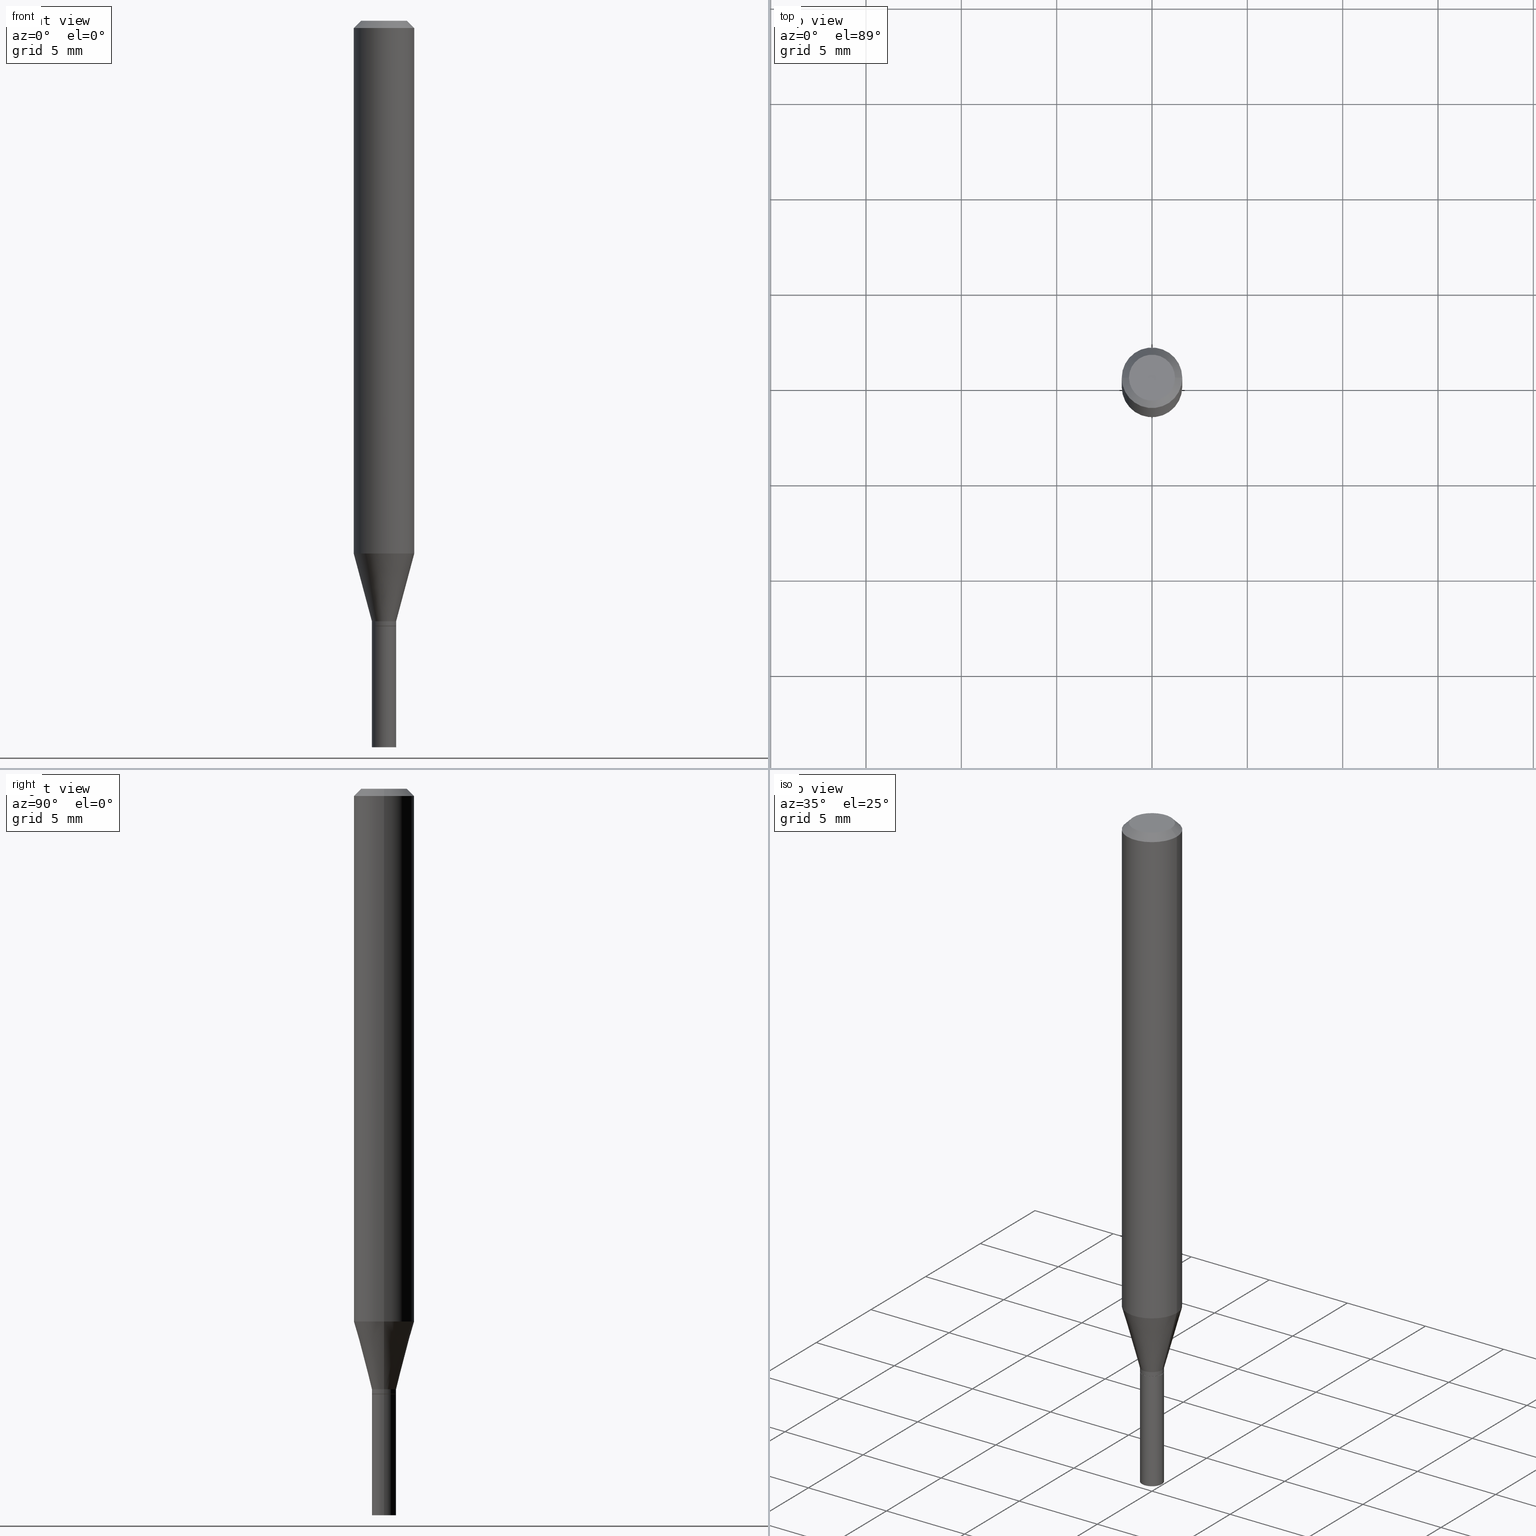
[diagram: canonical four-view strip — front | top / right | iso, engineering-drawing reading convention]
A machine part, canonical four-view strip (front | top / right | iso — engineering-drawing reading convention). The complete STEP part file that produces these views, byte-faithful:
ISO-10303-21;
HEADER;
FILE_DESCRIPTION (( 'STEP AP203' ),
    '1' );
FILE_NAME ('02650.STEP',
    '2024-03-18T21:05:29',
    ( '' ),
    ( '' ),
    'SwSTEP 2.0',
    'SolidWorks 2023',
    '' );
FILE_SCHEMA (( 'CONFIG_CONTROL_DESIGN' ));
ENDSEC;

DATA;
#1 = AXIS2_PLACEMENT_3D ( 'NONE', #346, #416, #126 ) ;
#2 = ORIENTED_EDGE ( 'NONE', *, *, #249, .T. ) ;
#3 = PLANE ( 'NONE',  #339 ) ;
#4 = VERTEX_POINT ( 'NONE', #454 ) ;
#5 = CARTESIAN_POINT ( 'NONE',  ( 3.316907271900976096E-16, 0.04749999999999999362, -4.396022119312972362E-16 ) ) ;
#6 = EDGE_LOOP ( 'NONE', ( #440, #338, #264, #212 ) ) ;
#7 = ADVANCED_FACE ( 'NONE', ( #344 ), #154, .T. ) ;
#8 = AXIS2_PLACEMENT_3D ( 'NONE', #322, #184, #147 ) ;
#9 = ORIENTED_EDGE ( 'NONE', *, *, #366, .T. ) ;
#10 = ADVANCED_FACE ( 'NONE', ( #161 ), #303, .T. ) ;
#11 = AXIS2_PLACEMENT_3D ( 'NONE', #237, #203, #453 ) ;
#12 = ORIENTED_EDGE ( 'NONE', *, *, #352, .F. ) ;
#13 = PLANE ( 'NONE',  #1 ) ;
#14 = ORIENTED_EDGE ( 'NONE', *, *, #146, .T. ) ;
#15 = DIRECTION ( 'NONE',  ( 1.000000000000000000, -6.982962677686266711E-15, 0.000000000000000000 ) ) ;
#16 = DIRECTION ( 'NONE',  ( -2.445468806185136597E-29, 3.491481338843145583E-15, 1.000000000000000000 ) ) ;
#17 = DIRECTION ( 'NONE',  ( 1.000000000000000000, -6.982962677686257244E-15, 0.000000000000000000 ) ) ;
#18 = ORIENTED_EDGE ( 'NONE', *, *, #309, .T. ) ;
#19 = LINE ( 'NONE', #393, #91 ) ;
#20 = ORIENTED_EDGE ( 'NONE', *, *, #231, .F. ) ;
#21 = FACE_OUTER_BOUND ( 'NONE', #187, .T. ) ;
#22 = VERTEX_POINT ( 'NONE', #450 ) ;
#23 = CC_DESIGN_DATE_AND_TIME_ASSIGNMENT ( #317, #395, ( #380 ) ) ;
#24 = CARTESIAN_POINT ( 'NONE',  ( 3.668203209277705088E-31, -5.237222008264718399E-17, -0.01499999999999999944 ) ) ;
#25 = DIRECTION ( 'NONE',  ( 1.000000000000000000, -6.982962677686274599E-15, 0.000000000000000000 ) ) ;
#26 = VECTOR ( 'NONE', #59, 39.37007874015748143 ) ;
#27 = EDGE_CURVE ( 'NONE', #340, #92, #191, .T. ) ;
#28 = AXIS2_PLACEMENT_3D ( 'NONE', #251, #466, #72 ) ;
#29 = PERSON_AND_ORGANIZATION ( #455, #456 ) ;
#30 = CARTESIAN_POINT ( 'NONE',  ( 3.056836007731421306E-29, -4.364351673553932471E-15, -1.250000000000000000 ) ) ;
#31 = CARTESIAN_POINT ( 'NONE',  ( 3.056836007731421306E-29, -4.364351673553932471E-15, -1.250000000000000000 ) ) ;
#32 = DIRECTION ( 'NONE',  ( -2.445468806185136597E-29, 3.491481338843145583E-15, 1.000000000000000000 ) ) ;
#33 = ORIENTED_EDGE ( 'NONE', *, *, #70, .F. ) ;
#34 = CALENDAR_DATE ( 2024, 18, 3 ) ;
#35 = AXIS2_PLACEMENT_3D ( 'NONE', #199, #376, #248 ) ;
#36 = CONICAL_SURFACE ( 'NONE', #73, 0.06250000000000000000, 0.7853981633974667087 ) ;
#37 = AXIS2_PLACEMENT_3D ( 'NONE', #85, #245, #236 ) ;
#38 = DIRECTION ( 'NONE',  ( 1.000000000000000000, -6.982962677686270655E-15, 0.000000000000000000 ) ) ;
#39 =( CONVERSION_BASED_UNIT ( 'INCH', #365 ) LENGTH_UNIT ( ) NAMED_UNIT ( #45 ) );
#40 = DIRECTION ( 'NONE',  ( -1.000000000000000000, 6.982962677686265922E-15, -4.876176775795935793E-29 ) ) ;
#41 = DIRECTION ( 'NONE',  ( -2.445468806185136877E-29, 3.491481338843145188E-15, 1.000000000000000000 ) ) ;
#42 = CONICAL_SURFACE ( 'NONE', #170, 0.02450000000000000094, 0.7853981633974739252 ) ;
#43 = PRODUCT ( '02650', '02650', '', ( #224 ) ) ;
#44 = ADVANCED_FACE ( 'NONE', ( #446 ), #425, .F. ) ;
#45 = DIMENSIONAL_EXPONENTS ( 1.000000000000000000, 0.000000000000000000, 0.000000000000000000, 0.000000000000000000, 0.000000000000000000, 0.000000000000000000, 0.000000000000000000 ) ;
#46 = CARTESIAN_POINT ( 'NONE',  ( 0.02499999999999992506, -4.504010927107657490E-15, -1.240000000000000213 ) ) ;
#47 = ADVANCED_FACE ( 'NONE', ( #198 ), #267, .T. ) ;
#48 = CIRCLE ( 'NONE', #315, 0.02499999999999992506 ) ;
#49 = ORIENTED_EDGE ( 'NONE', *, *, #415, .F. ) ;
#50 = APPROVAL ( #288, 'UNSPECIFIED' ) ;
#51 = EDGE_LOOP ( 'NONE', ( #314, #164, #20, #99 ) ) ;
#52 = DIRECTION ( 'NONE',  ( -2.445468806185136597E-29, 3.491481338843145583E-15, 1.000000000000000000 ) ) ;
#53 = FACE_OUTER_BOUND ( 'NONE', #51, .T. ) ;
#54 = PLANE ( 'NONE',  #279 ) ;
#55 = CARTESIAN_POINT ( 'NONE',  ( 3.055613273328328505E-29, -4.362605932884510968E-15, -1.249500000000000055 ) ) ;
#56 = AXIS2_PLACEMENT_3D ( 'NONE', #356, #278, #308 ) ;
#57 = EDGE_LOOP ( 'NONE', ( #420, #152, #335, #272 ) ) ;
#58 = AXIS2_PLACEMENT_3D ( 'NONE', #24, #122, #15 ) ;
#59 = DIRECTION ( 'NONE',  ( 0.7071067811865656694, -2.468850131082446387E-15, 0.7071067811865294761 ) ) ;
#60 = VERTEX_POINT ( 'NONE', #87 ) ;
#61 = CARTESIAN_POINT ( 'NONE',  ( -0.02499999999999992506, 1.776356839400245140E-16, -1.229733772563722802E-30 ) ) ;
#62 = DIRECTION ( 'NONE',  ( 1.000000000000000000, -6.982962677686265922E-15, 4.876176775795935793E-29 ) ) ;
#63 = CARTESIAN_POINT ( 'NONE',  ( 0.06250000000000000000, -4.364351673553916694E-16, 3.047610484872459871E-30 ) ) ;
#64 = LINE ( 'NONE', #449, #136 ) ;
#65 = ADVANCED_FACE ( 'NONE', ( #375 ), #54, .F. ) ;
#66 = CARTESIAN_POINT ( 'NONE',  ( 0.02499999999999992506, -4.537179999826666847E-15, -1.249500000000000055 ) ) ;
#67 = PERSON_AND_ORGANIZATION ( #455, #456 ) ;
#68 = CIRCLE ( 'NONE', #58, 0.06250000000000000000 ) ;
#69 = LOCAL_TIME ( 17, 5, 29.00000000000000000, #431 ) ;
#70 = EDGE_CURVE ( 'NONE', #177, #193, #115, .T. ) ;
#71 = CALENDAR_DATE ( 2024, 18, 3 ) ;
#72 = DIRECTION ( 'NONE',  ( 1.000000000000000000, -6.982962677686267499E-15, 4.852736867747366768E-29 ) ) ;
#73 = AXIS2_PLACEMENT_3D ( 'NONE', #336, #258, #189 ) ;
#74 = DESIGN_CONTEXT ( 'detailed design', #171, 'design' ) ;
#75 = EDGE_CURVE ( 'NONE', #193, #342, #155, .T. ) ;
#76 = ORIENTED_EDGE ( 'NONE', *, *, #82, .F. ) ;
#77 = DIRECTION ( 'NONE',  ( 1.000000000000000000, -6.982962677686254878E-15, 0.000000000000000000 ) ) ;
#78 = CARTESIAN_POINT ( 'NONE',  ( -0.02450000000000000094, -4.187619476118597753E-15, -1.250000000000000000 ) ) ;
#79 = APPLICATION_CONTEXT ( 'configuration controlled 3d designs of mechanical parts and assemblies' ) ;
#80 = CARTESIAN_POINT ( 'NONE',  ( -0.02499999999999992506, -4.184970248944486552E-15, -1.249500000000000055 ) ) ;
#81 = ORIENTED_EDGE ( 'NONE', *, *, #281, .F. ) ;
#82 = EDGE_CURVE ( 'NONE', #22, #342, #403, .T. ) ;
#83 = DIRECTION ( 'NONE',  ( -2.445468806185136597E-29, 3.491481338843145583E-15, 1.000000000000000000 ) ) ;
#84 = EDGE_LOOP ( 'NONE', ( #269, #363, #190, #294 ) ) ;
#85 = CARTESIAN_POINT ( 'NONE',  ( 3.056836007731421306E-29, -4.364351673553932471E-15, -1.250000000000000000 ) ) ;
#86 = DIRECTION ( 'NONE',  ( -2.445468806185136597E-29, 3.491481338843145583E-15, 1.000000000000000000 ) ) ;
#87 = CARTESIAN_POINT ( 'NONE',  ( -0.06250000000000000000, -1.502495597456988408E-15, -0.01499999999999999944 ) ) ;
#88 = DIRECTION ( 'NONE',  ( 1.000000000000000000, -6.982962677686254878E-15, 0.000000000000000000 ) ) ;
#89 = ORIENTED_EDGE ( 'NONE', *, *, #185, .F. ) ;
#90 = CYLINDRICAL_SURFACE ( 'NONE', #109, 0.02499999999999992506 ) ;
#91 = VECTOR ( 'NONE', #98, 39.37007874015748143 ) ;
#92 = VERTEX_POINT ( 'NONE', #80 ) ;
#93 = CLOSED_SHELL ( 'NONE', ( #157, #44, #194, #220 ) ) ;
#94 = FACE_OUTER_BOUND ( 'NONE', #265, .T. ) ;
#95 = DIRECTION ( 'NONE',  ( 2.445468806185136597E-29, -3.491481338843145583E-15, -1.000000000000000000 ) ) ;
#96 = EDGE_CURVE ( 'NONE', #206, #394, #230, .T. ) ;
#97 = ORIENTED_EDGE ( 'NONE', *, *, #70, .T. ) ;
#98 = DIRECTION ( 'NONE',  ( -2.445468806185136877E-29, 3.491481338843145188E-15, 1.000000000000000000 ) ) ;
#99 = ORIENTED_EDGE ( 'NONE', *, *, #249, .F. ) ;
#100 = CC_DESIGN_PERSON_AND_ORGANIZATION_ASSIGNMENT ( #104, #140, ( #380 ) ) ;
#101 = EDGE_LOOP ( 'NONE', ( #49, #97, #337, #76 ) ) ;
#102 = CONICAL_SURFACE ( 'NONE', #8, 0.02499999999999992506, 0.2617993877991497964 ) ;
#103 = CARTESIAN_POINT ( 'NONE',  ( 2.690133300931779832E-29, -3.840797394531454574E-15, -1.100048094716167268 ) ) ;
#104 = PERSON_AND_ORGANIZATION ( #455, #456 ) ;
#105 = CARTESIAN_POINT ( 'NONE',  ( 0.04749999999999999362, -4.035134999187587991E-16, -5.475136966724932144E-16 ) ) ;
#106 = CC_DESIGN_PERSON_AND_ORGANIZATION_ASSIGNMENT ( #367, #186, ( #43 ) ) ;
#107 = DIRECTION ( 'NONE',  ( 1.000000000000000000, -6.982962677686276177E-15, 0.000000000000000000 ) ) ;
#108 = FACE_OUTER_BOUND ( 'NONE', #407, .T. ) ;
#109 = AXIS2_PLACEMENT_3D ( 'NONE', #241, #384, #172 ) ;
#110 = EDGE_CURVE ( 'NONE', #193, #177, #293, .T. ) ;
#111 = APPLICATION_PROTOCOL_DEFINITION ( 'international standard', 'config_control_design', 1994, #79 ) ;
#112 = DIRECTION ( 'NONE',  ( 0.000000000000000000, 0.000000000000000000, 1.000000000000000000 ) ) ;
#113 = VERTEX_POINT ( 'NONE', #78 ) ;
#114 = ORIENTED_EDGE ( 'NONE', *, *, #182, .T. ) ;
#115 = CIRCLE ( 'NONE', #137, 0.02499999999999992506 ) ;
#116 = APPROVAL_PERSON_ORGANIZATION ( #282, #349, #253 ) ;
#117 = VECTOR ( 'NONE', #343, 39.37007874015748854 ) ;
#118 = ORIENTED_EDGE ( 'NONE', *, *, #404, .T. ) ;
#119 = CARTESIAN_POINT ( 'NONE',  ( 3.032381319669569761E-29, -4.329436860165500822E-15, -1.240000000000000213 ) ) ;
#120 = EDGE_CURVE ( 'NONE', #113, #92, #227, .T. ) ;
#121 = EDGE_LOOP ( 'NONE', ( #225, #262, #9, #377 ) ) ;
#122 = DIRECTION ( 'NONE',  ( -2.445468806185136597E-29, 3.491481338843145583E-15, 1.000000000000000000 ) ) ;
#123 = CC_DESIGN_APPROVAL ( #370, ( #215 ) ) ;
#124 = AXIS2_PLACEMENT_3D ( 'NONE', #239, #355, #25 ) ;
#125 = DIRECTION ( 'NONE',  ( 1.000000000000000000, -6.982962677686253300E-15, 0.000000000000000000 ) ) ;
#126 = DIRECTION ( 'NONE',  ( -1.000000000000000000, 6.982962677686265922E-15, -4.876176775795935793E-29 ) ) ;
#127 = DIRECTION ( 'NONE',  ( -0.7071067811865604513, 2.468850131082393139E-15, -0.7071067811865343611 ) ) ;
#128 = ORIENTED_EDGE ( 'NONE', *, *, #330, .F. ) ;
#129 = LINE ( 'NONE', #63, #326 ) ;
#130 = DIRECTION ( 'NONE',  ( -1.000000000000000000, 6.982962677686266711E-15, 0.000000000000000000 ) ) ;
#131 = VERTEX_POINT ( 'NONE', #133 ) ;
#132 = EDGE_CURVE ( 'NONE', #394, #410, #169, .T. ) ;
#133 = CARTESIAN_POINT ( 'NONE',  ( 0.02450000000000000094, -4.535434259157245343E-15, -1.250000000000000000 ) ) ;
#134 = CARTESIAN_POINT ( 'NONE',  ( 1.338927666171699122E-44, -1.911633854693045593E-30, -5.475136966724957782E-16 ) ) ;
#135 = ORIENTED_EDGE ( 'NONE', *, *, #182, .F. ) ;
#136 = VECTOR ( 'NONE', #271, 39.37007874015748143 ) ;
#137 = AXIS2_PLACEMENT_3D ( 'NONE', #175, #289, #107 ) ;
#138 = DIRECTION ( 'NONE',  ( 1.000000000000000000, -6.982962677686253300E-15, 0.000000000000000000 ) ) ;
#139 = CC_DESIGN_DATE_AND_TIME_ASSIGNMENT ( #284, #174, ( #396 ) ) ;
#140 = PERSON_AND_ORGANIZATION_ROLE ( 'creator' ) ;
#141 = APPROVAL_ROLE ( '' ) ;
#142 = DATE_AND_TIME ( #34, #69 ) ;
#143 = CC_DESIGN_SECURITY_CLASSIFICATION ( #396, ( #215 ) ) ;
#144 = APPROVAL_STATUS ( 'not_yet_approved' ) ;
#145 = CARTESIAN_POINT ( 'NONE',  ( 0.000000000000000000, 0.000000000000000000, 0.000000000000000000 ) ) ;
#146 = EDGE_CURVE ( 'NONE', #340, #193, #19, .T. ) ;
#147 = DIRECTION ( 'NONE',  ( 1.000000000000000000, -6.982962677686276177E-15, 0.000000000000000000 ) ) ;
#148 = AXIS2_PLACEMENT_3D ( 'NONE', #341, #52, #197 ) ;
#149 = LOCAL_TIME ( 17, 5, 29.00000000000000000, #433 ) ;
#150 = CARTESIAN_POINT ( 'NONE',  ( -0.02499999999999992506, -4.151801176225476407E-15, -1.240000000000000213 ) ) ;
#151 = ORIENTED_EDGE ( 'NONE', *, *, #256, .F. ) ;
#152 = ORIENTED_EDGE ( 'NONE', *, *, #459, .T. ) ;
#153 = CIRCLE ( 'NONE', #124, 0.02500000000000000139 ) ;
#154 = CONICAL_SURFACE ( 'NONE', #56, 0.02499999999999992506, 0.2617993877991497964 ) ;
#155 = LINE ( 'NONE', #46, #221 ) ;
#156 = CARTESIAN_POINT ( 'NONE',  ( 3.056836007731421306E-29, -4.364351673553932471E-15, -1.250000000000000000 ) ) ;
#157 = ADVANCED_FACE ( 'NONE', ( #414 ), #305, .T. ) ;
#158 = DIRECTION ( 'NONE',  ( -2.445468806185136597E-29, 3.491481338843145583E-15, 1.000000000000000000 ) ) ;
#159 = CARTESIAN_POINT ( 'NONE',  ( 0.06250000000000000000, -4.888073874380388472E-16, -0.01499999999999999944 ) ) ;
#160 = VECTOR ( 'NONE', #260, 39.37007874015748143 ) ;
#161 = FACE_OUTER_BOUND ( 'NONE', #436, .T. ) ;
#162 = CARTESIAN_POINT ( 'NONE',  ( 3.668203209277705088E-31, -5.237222008264718399E-17, -0.01499999999999999944 ) ) ;
#163 = FACE_OUTER_BOUND ( 'NONE', #166, .T. ) ;
#164 = ORIENTED_EDGE ( 'NONE', *, *, #214, .T. ) ;
#165 = FACE_OUTER_BOUND ( 'NONE', #57, .T. ) ;
#166 = EDGE_LOOP ( 'NONE', ( #319, #240, #368, #381 ) ) ;
#167 = EDGE_LOOP ( 'NONE', ( #458, #443, #210, #232 ) ) ;
#168 = CARTESIAN_POINT ( 'NONE',  ( 3.056836007731421306E-29, -4.364351673553932471E-15, -1.250000000000000000 ) ) ;
#169 = CIRCLE ( 'NONE', #35, 0.02500000000000000139 ) ;
#170 = AXIS2_PLACEMENT_3D ( 'NONE', #30, #318, #285 ) ;
#171 = APPLICATION_CONTEXT ( 'configuration controlled 3d designs of mechanical parts and assemblies' ) ;
#172 = DIRECTION ( 'NONE',  ( 1.000000000000000000, -6.982962677686265922E-15, 4.876176775795935793E-29 ) ) ;
#173 = ORIENTED_EDGE ( 'NONE', *, *, #132, .T. ) ;
#174 = DATE_TIME_ROLE ( 'classification_date' ) ;
#175 = CARTESIAN_POINT ( 'NONE',  ( 3.032381319669569761E-29, -4.329436860165500822E-15, -1.240000000000000213 ) ) ;
#176 = COORDINATED_UNIVERSAL_TIME_OFFSET ( 5, 0, .BEHIND. ) ;
#177 = VERTEX_POINT ( 'NONE', #268 ) ;
#178 = CIRCLE ( 'NONE', #234, 0.06250000000000000000 ) ;
#179 = CC_DESIGN_PERSON_AND_ORGANIZATION_ASSIGNMENT ( #29, #255, ( #396 ) ) ;
#180 = AXIS2_PLACEMENT_3D ( 'NONE', #270, #238, #88 ) ;
#181 = LINE ( 'NONE', #150, #160 ) ;
#182 = EDGE_CURVE ( 'NONE', #131, #113, #435, .T. ) ;
#183 = SHAPE_DEFINITION_REPRESENTATION ( #228, #329 ) ;
#184 = DIRECTION ( 'NONE',  ( -2.445468806185136597E-29, 3.491481338843145583E-15, 1.000000000000000000 ) ) ;
#185 = EDGE_CURVE ( 'NONE', #131, #340, #302, .T. ) ;
#186 = PERSON_AND_ORGANIZATION_ROLE ( 'design_owner' ) ;
#187 = EDGE_LOOP ( 'NONE', ( #463, #208, #2, #418 ) ) ;
#188 = APPROVAL_PERSON_ORGANIZATION ( #364, #50, #141 ) ;
#189 = DIRECTION ( 'NONE',  ( -1.000000000000000000, 6.982962677686266711E-15, 0.000000000000000000 ) ) ;
#190 = ORIENTED_EDGE ( 'NONE', *, *, #110, .F. ) ;
#191 = CIRCLE ( 'NONE', #243, 0.02499999999999992506 ) ;
#192 = AXIS2_PLACEMENT_3D ( 'NONE', #452, #95, #130 ) ;
#193 = VERTEX_POINT ( 'NONE', #457 ) ;
#194 = ADVANCED_FACE ( 'NONE', ( #165 ), #422, .T. ) ;
#195 = CARTESIAN_POINT ( 'NONE',  ( 0.000000000000000000, 0.000000000000000000, 0.000000000000000000 ) ) ;
#196 = ORIENTED_EDGE ( 'NONE', *, *, #75, .F. ) ;
#197 = DIRECTION ( 'NONE',  ( 1.000000000000000000, -6.982962677686267499E-15, 4.876176775795936353E-29 ) ) ;
#198 = FACE_OUTER_BOUND ( 'NONE', #218, .T. ) ;
#199 = CARTESIAN_POINT ( 'NONE',  ( 3.056836007731421306E-29, -4.364351673553932471E-15, -1.250000000000000000 ) ) ;
#200 = AXIS2_PLACEMENT_3D ( 'NONE', #405, #408, #295 ) ;
#201 = CONICAL_SURFACE ( 'NONE', #192, 0.06250000000000000000, 0.7853981633974667087 ) ;
#202 = MANIFOLD_SOLID_BREP ( 'Body-Move/Copy2[1]', #93 ) ;
#203 = DIRECTION ( 'NONE',  ( -2.445468806185136597E-29, 3.491481338843145583E-15, 1.000000000000000000 ) ) ;
#204 = MANIFOLD_SOLID_BREP ( 'Body-Move/Copy2[2]', #373 ) ;
#205 = CARTESIAN_POINT ( 'NONE',  ( 0.02500000000000000139, -5.411796075206874844E-15, -1.500000000000000222 ) ) ;
#206 = VERTEX_POINT ( 'NONE', #205 ) ;
#207 = DIRECTION ( 'NONE',  ( 1.000000000000000000, -6.982962677686267499E-15, 4.852736867747366768E-29 ) ) ;
#208 = ORIENTED_EDGE ( 'NONE', *, *, #82, .T. ) ;
#209 = LINE ( 'NONE', #354, #117 ) ;
#210 = ORIENTED_EDGE ( 'NONE', *, *, #132, .F. ) ;
#211 = CYLINDRICAL_SURFACE ( 'NONE', #277, 0.06250000000000000000 ) ;
#212 = ORIENTED_EDGE ( 'NONE', *, *, #263, .F. ) ;
#213 = UNCERTAINTY_MEASURE_WITH_UNIT (LENGTH_MEASURE( 1.000000000000000082E-05 ), #39, 'distance_accuracy_value', 'NONE');
#214 = EDGE_CURVE ( 'NONE', #22, #60, #388, .T. ) ;
#215 = PRODUCT_DEFINITION_FORMATION_WITH_SPECIFIED_SOURCE ( 'ANY', '', #43, .NOT_KNOWN. ) ;
#216 = APPROVAL_STATUS ( 'not_yet_approved' ) ;
#217 = DATE_AND_TIME ( #357, #447 ) ;
#218 = EDGE_LOOP ( 'NONE', ( #114, #229, #438, #89 ) ) ;
#219 = SECURITY_CLASSIFICATION_LEVEL ( 'unclassified' ) ;
#220 = ADVANCED_FACE ( 'NONE', ( #94 ), #13, .F. ) ;
#221 = VECTOR ( 'NONE', #369, 39.37007874015748143 ) ;
#222 = DATE_AND_TIME ( #71, #244 ) ;
#223 = FACE_OUTER_BOUND ( 'NONE', #121, .T. ) ;
#224 = MECHANICAL_CONTEXT ( 'NONE', #79, 'mechanical' ) ;
#225 = ORIENTED_EDGE ( 'NONE', *, *, #254, .F. ) ;
#226 = AXIS2_PLACEMENT_3D ( 'NONE', #276, #16, #423 ) ;
#227 = LINE ( 'NONE', #310, #382 ) ;
#228 = PRODUCT_DEFINITION_SHAPE ( 'NONE', 'NONE',  #380 ) ;
#229 = ORIENTED_EDGE ( 'NONE', *, *, #120, .T. ) ;
#230 = LINE ( 'NONE', #299, #462 ) ;
#231 = EDGE_CURVE ( 'NONE', #372, #60, #68, .T. ) ;
#232 = ORIENTED_EDGE ( 'NONE', *, *, #96, .F. ) ;
#233 = AXIS2_PLACEMENT_3D ( 'NONE', #195, #158, #275 ) ;
#234 = AXIS2_PLACEMENT_3D ( 'NONE', #103, #32, #38 ) ;
#235 = CARTESIAN_POINT ( 'NONE',  ( 3.055613273328328505E-29, -4.362605932884510968E-15, -1.249500000000000055 ) ) ;
#236 = DIRECTION ( 'NONE',  ( 1.000000000000000000, -6.982962677686253300E-15, 0.000000000000000000 ) ) ;
#237 = CARTESIAN_POINT ( 'NONE',  ( 0.000000000000000000, 0.000000000000000000, 0.000000000000000000 ) ) ;
#238 = DIRECTION ( 'NONE',  ( -2.445468806185136597E-29, 3.491481338843145583E-15, 1.000000000000000000 ) ) ;
#239 = CARTESIAN_POINT ( 'NONE',  ( 3.056836007731421306E-29, -4.364351673553932471E-15, -1.250000000000000000 ) ) ;
#240 = ORIENTED_EDGE ( 'NONE', *, *, #254, .T. ) ;
#241 = CARTESIAN_POINT ( 'NONE',  ( 0.000000000000000000, 0.000000000000000000, 0.000000000000000000 ) ) ;
#242 = LINE ( 'NONE', #379, #324 ) ;
#243 = AXIS2_PLACEMENT_3D ( 'NONE', #235, #247, #387 ) ;
#244 = LOCAL_TIME ( 17, 5, 29.00000000000000000, #176 ) ;
#245 = DIRECTION ( 'NONE',  ( -2.445468806185136597E-29, 3.491481338843145583E-15, 1.000000000000000000 ) ) ;
#246 = CARTESIAN_POINT ( 'NONE',  ( -0.02500000000000000139, -4.623151156969299725E-15, -1.250000000000000000 ) ) ;
#247 = DIRECTION ( 'NONE',  ( -2.445468806185136597E-29, 3.491481338843145583E-15, 1.000000000000000000 ) ) ;
#248 = DIRECTION ( 'NONE',  ( 1.000000000000000000, -6.982962677686274599E-15, 0.000000000000000000 ) ) ;
#249 = EDGE_CURVE ( 'NONE', #342, #372, #129, .T. ) ;
#250 = CALENDAR_DATE ( 2024, 18, 3 ) ;
#251 = CARTESIAN_POINT ( 'NONE',  ( 1.338927666171699122E-44, -1.911633854693045593E-30, -5.475136966724957782E-16 ) ) ;
#252 = CC_DESIGN_APPROVAL ( #50, ( #396 ) ) ;
#253 = APPROVAL_ROLE ( '' ) ;
#254 = EDGE_CURVE ( 'NONE', #323, #372, #209, .T. ) ;
#255 = PERSON_AND_ORGANIZATION_ROLE ( 'classification_officer' ) ;
#256 = EDGE_CURVE ( 'NONE', #206, #259, #386, .T. ) ;
#257 = APPROVAL_PERSON_ORGANIZATION ( #67, #370, #429 ) ;
#258 = DIRECTION ( 'NONE',  ( 2.445468806185136597E-29, -3.491481338843145583E-15, -1.000000000000000000 ) ) ;
#259 = VERTEX_POINT ( 'NONE', #378 ) ;
#260 = DIRECTION ( 'NONE',  ( -0.2588190451025211281, 5.211531920934548675E-15, 0.9659258262890682012 ) ) ;
#261 = ORIENTED_EDGE ( 'NONE', *, *, #459, .F. ) ;
#262 = ORIENTED_EDGE ( 'NONE', *, *, #309, .F. ) ;
#263 = EDGE_CURVE ( 'NONE', #92, #340, #48, .T. ) ;
#264 = ORIENTED_EDGE ( 'NONE', *, *, #185, .T. ) ;
#265 = EDGE_LOOP ( 'NONE', ( #173, #118 ) ) ;
#266 = EDGE_CURVE ( 'NONE', #60, #372, #333, .T. ) ;
#267 = CONICAL_SURFACE ( 'NONE', #444, 0.02450000000000000094, 0.7853981633974739252 ) ;
#268 = CARTESIAN_POINT ( 'NONE',  ( -0.02499999999999992506, -3.774254680453434182E-15, -1.240000000000000213 ) ) ;
#269 = ORIENTED_EDGE ( 'NONE', *, *, #27, .T. ) ;
#270 = CARTESIAN_POINT ( 'NONE',  ( 3.668203209277704895E-29, -5.237222008264718177E-15, -1.500000000000000222 ) ) ;
#271 = DIRECTION ( 'NONE',  ( -2.445468806185136877E-29, 3.491481338843145188E-15, 1.000000000000000000 ) ) ;
#272 = ORIENTED_EDGE ( 'NONE', *, *, #404, .F. ) ;
#273 = DIRECTION ( 'NONE',  ( 1.000000000000000000, -6.982962677686266711E-15, 0.000000000000000000 ) ) ;
#274 = CARTESIAN_POINT ( 'NONE',  ( 3.576687321579069994E-29, -5.368277968210015545E-15, -1.500000000000000222 ) ) ;
#275 = DIRECTION ( 'NONE',  ( 1.000000000000000000, -6.982962677686267499E-15, 4.876176775795936353E-29 ) ) ;
#276 = CARTESIAN_POINT ( 'NONE',  ( 0.000000000000000000, 0.000000000000000000, 0.000000000000000000 ) ) ;
#277 = AXIS2_PLACEMENT_3D ( 'NONE', #306, #351, #311 ) ;
#278 = DIRECTION ( 'NONE',  ( -2.445468806185136597E-29, 3.491481338843145583E-15, 1.000000000000000000 ) ) ;
#279 = AXIS2_PLACEMENT_3D ( 'NONE', #31, #283, #316 ) ;
#280 = DIRECTION ( 'NONE',  ( -2.445468806185136877E-29, 3.491481338843145188E-15, 1.000000000000000000 ) ) ;
#281 = EDGE_CURVE ( 'NONE', #113, #131, #464, .T. ) ;
#282 = PERSON_AND_ORGANIZATION ( #455, #456 ) ;
#283 = DIRECTION ( 'NONE',  ( -2.438088387897960049E-29, 3.491481338843145188E-15, 1.000000000000000000 ) ) ;
#284 = DATE_AND_TIME ( #465, #298 ) ;
#285 = DIRECTION ( 'NONE',  ( 1.000000000000000000, -6.982962677686253300E-15, 0.000000000000000000 ) ) ;
#286 = PERSON_AND_ORGANIZATION_ROLE ( 'design_supplier' ) ;
#287 = ORIENTED_EDGE ( 'NONE', *, *, #263, .T. ) ;
#288 = APPROVAL_STATUS ( 'not_yet_approved' ) ;
#289 = DIRECTION ( 'NONE',  ( -2.445468806185136597E-29, 3.491481338843145583E-15, 1.000000000000000000 ) ) ;
#290 = FACE_OUTER_BOUND ( 'NONE', #6, .T. ) ;
#291 = DIRECTION ( 'NONE',  ( 1.000000000000000000, 0.000000000000000000, 0.000000000000000000 ) ) ;
#292 = CARTESIAN_POINT ( 'NONE',  ( 0.06250000000000000000, -4.277232561886846243E-15, -1.100048094716167268 ) ) ;
#293 = CIRCLE ( 'NONE', #296, 0.02499999999999992506 ) ;
#294 = ORIENTED_EDGE ( 'NONE', *, *, #146, .F. ) ;
#295 = DIRECTION ( 'NONE',  ( 1.000000000000000000, -6.982962677686270655E-15, 0.000000000000000000 ) ) ;
#296 = AXIS2_PLACEMENT_3D ( 'NONE', #119, #83, #406 ) ;
#297 = ADVANCED_FACE ( 'NONE', ( #426 ), #90, .T. ) ;
#298 = LOCAL_TIME ( 17, 5, 29.00000000000000000, #391 ) ;
#299 = CARTESIAN_POINT ( 'NONE',  ( 0.02500000000000000139, -1.745740669421566924E-16, 1.219044193948984123E-30 ) ) ;
#300 = CC_DESIGN_PERSON_AND_ORGANIZATION_ASSIGNMENT ( #460, #286, ( #215 ) ) ;
#301 = DIRECTION ( 'NONE',  ( -2.445468806185136597E-29, 3.491481338843145583E-15, 1.000000000000000000 ) ) ;
#302 = LINE ( 'NONE', #419, #26 ) ;
#303 = CYLINDRICAL_SURFACE ( 'NONE', #11, 0.02499999999999992506 ) ;
#304 = AXIS2_PLACEMENT_3D ( 'NONE', #134, #86, #207 ) ;
#305 = CYLINDRICAL_SURFACE ( 'NONE', #233, 0.02500000000000000139 ) ;
#306 = CARTESIAN_POINT ( 'NONE',  ( 0.000000000000000000, 0.000000000000000000, 0.000000000000000000 ) ) ;
#307 = DIRECTION ( 'NONE',  ( -2.445468806185136597E-29, 3.491481338843145583E-15, 1.000000000000000000 ) ) ;
#308 = DIRECTION ( 'NONE',  ( 1.000000000000000000, -6.982962677686276177E-15, 0.000000000000000000 ) ) ;
#309 = EDGE_CURVE ( 'NONE', #4, #323, #401, .T. ) ;
#310 = CARTESIAN_POINT ( 'NONE',  ( -0.02450000000000000094, -4.190268703292708166E-15, -1.250000000000000000 ) ) ;
#311 = DIRECTION ( 'NONE',  ( 1.000000000000000000, -6.982962677686266711E-15, 4.876176775795935793E-29 ) ) ;
#312 = ADVANCED_FACE ( 'NONE', ( #290 ), #42, .T. ) ;
#313 = DIRECTION ( 'NONE',  ( -2.445468806185136597E-29, 3.491481338843145583E-15, 1.000000000000000000 ) ) ;
#314 = ORIENTED_EDGE ( 'NONE', *, *, #330, .T. ) ;
#315 = AXIS2_PLACEMENT_3D ( 'NONE', #55, #350, #17 ) ;
#316 = DIRECTION ( 'NONE',  ( 1.000000000000000000, -6.982962677686265922E-15, 4.876176775795935793E-29 ) ) ;
#317 = DATE_AND_TIME ( #250, #149 ) ;
#318 = DIRECTION ( 'NONE',  ( -2.445468806185136597E-29, 3.491481338843145583E-15, 1.000000000000000000 ) ) ;
#319 = ORIENTED_EDGE ( 'NONE', *, *, #359, .F. ) ;
#320 = PRODUCT_RELATED_PRODUCT_CATEGORY ( 'detail', '', ( #43 ) ) ;
#321 = APPLICATION_PROTOCOL_DEFINITION ( 'international standard', 'config_control_design', 1994, #171 ) ;
#322 = CARTESIAN_POINT ( 'NONE',  ( 3.032381319669569761E-29, -4.329436860165500822E-15, -1.240000000000000213 ) ) ;
#323 = VERTEX_POINT ( 'NONE', #105 ) ;
#324 = VECTOR ( 'NONE', #127, 39.37007874015748854 ) ;
#325 = PERSON_AND_ORGANIZATION ( #455, #456 ) ;
#326 = VECTOR ( 'NONE', #280, 39.37007874015748143 ) ;
#327 = CARTESIAN_POINT ( 'NONE',  ( 3.668203209277704895E-29, -5.237222008264718177E-15, -1.500000000000000222 ) ) ;
#328 = DIRECTION ( 'NONE',  ( 2.438088387897960049E-29, -3.491481338843145188E-15, -1.000000000000000000 ) ) ;
#329 = ADVANCED_BREP_SHAPE_REPRESENTATION ( '02650', ( #202, #204, #442 ), #360 ) ;
#330 = EDGE_CURVE ( 'NONE', #342, #22, #178, .T. ) ;
#331 = AXIS2_PLACEMENT_3D ( 'NONE', #327, #402, #77 ) ;
#332 = ORIENTED_EDGE ( 'NONE', *, *, #415, .T. ) ;
#333 = CIRCLE ( 'NONE', #383, 0.06250000000000000000 ) ;
#334 = ADVANCED_FACE ( 'NONE', ( #108 ), #102, .T. ) ;
#335 = ORIENTED_EDGE ( 'NONE', *, *, #96, .T. ) ;
#336 = CARTESIAN_POINT ( 'NONE',  ( 3.668203209277705088E-31, -5.237222008264718399E-17, -0.01499999999999999944 ) ) ;
#337 = ORIENTED_EDGE ( 'NONE', *, *, #75, .T. ) ;
#338 = ORIENTED_EDGE ( 'NONE', *, *, #281, .T. ) ;
#339 = AXIS2_PLACEMENT_3D ( 'NONE', #5, #328, #40 ) ;
#340 = VERTEX_POINT ( 'NONE', #66 ) ;
#341 = CARTESIAN_POINT ( 'NONE',  ( 0.000000000000000000, 0.000000000000000000, 0.000000000000000000 ) ) ;
#342 = VERTEX_POINT ( 'NONE', #292 ) ;
#343 = DIRECTION ( 'NONE',  ( 0.7071067811865604513, -7.319954787623298644E-15, -0.7071067811865343611 ) ) ;
#344 = FACE_OUTER_BOUND ( 'NONE', #101, .T. ) ;
#345 = CC_DESIGN_APPROVAL ( #349, ( #380 ) ) ;
#346 = CARTESIAN_POINT ( 'NONE',  ( 1.745740669421872361E-16, 0.02499999999999564029, -1.250000000000000000 ) ) ;
#347 = DIRECTION ( 'NONE',  ( -2.445468806185136877E-29, 3.491481338843145188E-15, 1.000000000000000000 ) ) ;
#348 = EDGE_LOOP ( 'NONE', ( #135, #81 ) ) ;
#349 = APPROVAL ( #144, 'UNSPECIFIED' ) ;
#350 = DIRECTION ( 'NONE',  ( -2.445468806185136597E-29, 3.491481338843145583E-15, 1.000000000000000000 ) ) ;
#351 = DIRECTION ( 'NONE',  ( -2.445468806185136597E-29, 3.491481338843145583E-15, 1.000000000000000000 ) ) ;
#352 = EDGE_CURVE ( 'NONE', #92, #177, #434, .T. ) ;
#353 = ORIENTED_EDGE ( 'NONE', *, *, #359, .T. ) ;
#354 = CARTESIAN_POINT ( 'NONE',  ( 0.06250000000000000000, -4.811533449433679005E-16, -0.01499999999999999944 ) ) ;
#355 = DIRECTION ( 'NONE',  ( -2.445468806185136597E-29, 3.491481338843145583E-15, 1.000000000000000000 ) ) ;
#356 = CARTESIAN_POINT ( 'NONE',  ( 3.032381319669569761E-29, -4.329436860165500822E-15, -1.240000000000000213 ) ) ;
#357 = CALENDAR_DATE ( 2024, 18, 3 ) ;
#358 = VECTOR ( 'NONE', #448, 39.37007874015748143 ) ;
#359 = EDGE_CURVE ( 'NONE', #323, #4, #374, .T. ) ;
#360 =( GEOMETRIC_REPRESENTATION_CONTEXT ( 3 ) GLOBAL_UNCERTAINTY_ASSIGNED_CONTEXT ( ( #213 ) ) GLOBAL_UNIT_ASSIGNED_CONTEXT ( ( #39, #437, #398 ) ) REPRESENTATION_CONTEXT ( 'NONE', 'WORKASPACE' ) );
#361 = APPROVAL_DATE_TIME ( #142, #370 ) ;
#362 = APPROVAL_DATE_TIME ( #217, #50 ) ;
#363 = ORIENTED_EDGE ( 'NONE', *, *, #352, .T. ) ;
#364 = PERSON_AND_ORGANIZATION ( #455, #456 ) ;
#365 = LENGTH_MEASURE_WITH_UNIT ( LENGTH_MEASURE( 0.02539999999999999897 ), #441 );
#366 = EDGE_CURVE ( 'NONE', #4, #60, #242, .T. ) ;
#367 = PERSON_AND_ORGANIZATION ( #455, #456 ) ;
#368 = ORIENTED_EDGE ( 'NONE', *, *, #231, .T. ) ;
#369 = DIRECTION ( 'NONE',  ( 0.2588190451025211281, 1.565188264969623940E-15, 0.9659258262890682012 ) ) ;
#370 = APPROVAL ( #216, 'UNSPECIFIED' ) ;
#371 = EDGE_LOOP ( 'NONE', ( #151, #261 ) ) ;
#372 = VERTEX_POINT ( 'NONE', #159 ) ;
#373 = CLOSED_SHELL ( 'NONE', ( #297, #47, #392, #400, #334, #7, #385, #432, #461, #65, #312, #10 ) ) ;
#374 = CIRCLE ( 'NONE', #304, 0.04749999999999999362 ) ;
#375 = FACE_OUTER_BOUND ( 'NONE', #348, .T. ) ;
#376 = DIRECTION ( 'NONE',  ( -2.445468806185136597E-29, 3.491481338843145583E-15, 1.000000000000000000 ) ) ;
#377 = ORIENTED_EDGE ( 'NONE', *, *, #266, .T. ) ;
#378 = CARTESIAN_POINT ( 'NONE',  ( -0.02500000000000000139, -4.623151156969299725E-15, -1.500000000000000222 ) ) ;
#379 = CARTESIAN_POINT ( 'NONE',  ( -0.06250000000000000000, 3.840629472727444916E-16, -0.01499999999999999944 ) ) ;
#380 = PRODUCT_DEFINITION ( 'UNKNOWN', '', #215, #74 ) ;
#381 = ORIENTED_EDGE ( 'NONE', *, *, #366, .F. ) ;
#382 = VECTOR ( 'NONE', #451, 39.37007874015748143 ) ;
#383 = AXIS2_PLACEMENT_3D ( 'NONE', #162, #307, #273 ) ;
#384 = DIRECTION ( 'NONE',  ( -2.445468806185136597E-29, 3.491481338843145583E-15, 1.000000000000000000 ) ) ;
#385 = ADVANCED_FACE ( 'NONE', ( #21 ), #389, .T. ) ;
#386 = CIRCLE ( 'NONE', #180, 0.02500000000000000139 ) ;
#387 = DIRECTION ( 'NONE',  ( 1.000000000000000000, -6.982962677686257244E-15, 0.000000000000000000 ) ) ;
#388 = LINE ( 'NONE', #445, #358 ) ;
#389 = CYLINDRICAL_SURFACE ( 'NONE', #226, 0.06250000000000000000 ) ;
#390 = DIRECTION ( 'NONE',  ( -2.438088387897960049E-29, 3.491481338843145188E-15, 1.000000000000000000 ) ) ;
#391 = COORDINATED_UNIVERSAL_TIME_OFFSET ( 5, 0, .BEHIND. ) ;
#392 = ADVANCED_FACE ( 'NONE', ( #163 ), #201, .T. ) ;
#393 = CARTESIAN_POINT ( 'NONE',  ( 0.02499999999999992506, -1.745740669421561254E-16, 1.219044193948980270E-30 ) ) ;
#394 = VERTEX_POINT ( 'NONE', #417 ) ;
#395 = DATE_TIME_ROLE ( 'creation_date' ) ;
#396 = SECURITY_CLASSIFICATION ( '', '', #219 ) ;
#397 = COORDINATED_UNIVERSAL_TIME_OFFSET ( 5, 0, .BEHIND. ) ;
#398 =( NAMED_UNIT ( * ) SI_UNIT ( $, .STERADIAN. ) SOLID_ANGLE_UNIT ( ) );
#399 = PERSON_AND_ORGANIZATION_ROLE ( 'creator' ) ;
#400 = ADVANCED_FACE ( 'NONE', ( #53 ), #211, .T. ) ;
#401 = CIRCLE ( 'NONE', #28, 0.04749999999999999362 ) ;
#402 = DIRECTION ( 'NONE',  ( -2.445468806185136597E-29, 3.491481338843145583E-15, 1.000000000000000000 ) ) ;
#403 = CIRCLE ( 'NONE', #200, 0.06250000000000000000 ) ;
#404 = EDGE_CURVE ( 'NONE', #410, #394, #153, .T. ) ;
#405 = CARTESIAN_POINT ( 'NONE',  ( 2.690133300931779832E-29, -3.840797394531454574E-15, -1.100048094716167268 ) ) ;
#406 = DIRECTION ( 'NONE',  ( 1.000000000000000000, -6.982962677686276177E-15, 0.000000000000000000 ) ) ;
#407 = EDGE_LOOP ( 'NONE', ( #428, #332, #128, #196 ) ) ;
#408 = DIRECTION ( 'NONE',  ( -2.445468806185136597E-29, 3.491481338843145583E-15, 1.000000000000000000 ) ) ;
#409 = CC_DESIGN_PERSON_AND_ORGANIZATION_ASSIGNMENT ( #325, #399, ( #215 ) ) ;
#410 = VERTEX_POINT ( 'NONE', #246 ) ;
#411 = EDGE_CURVE ( 'NONE', #259, #410, #64, .T. ) ;
#412 = EDGE_LOOP ( 'NONE', ( #18, #353 ) ) ;
#413 = VECTOR ( 'NONE', #347, 39.37007874015748143 ) ;
#414 = FACE_OUTER_BOUND ( 'NONE', #167, .T. ) ;
#415 = EDGE_CURVE ( 'NONE', #177, #22, #181, .T. ) ;
#416 = DIRECTION ( 'NONE',  ( 2.438088387897960049E-29, -3.491481338843145188E-15, -1.000000000000000000 ) ) ;
#417 = CARTESIAN_POINT ( 'NONE',  ( 0.02500000000000000139, -4.538925740496089139E-15, -1.250000000000000000 ) ) ;
#418 = ORIENTED_EDGE ( 'NONE', *, *, #266, .F. ) ;
#419 = CARTESIAN_POINT ( 'NONE',  ( 0.02450000000000000094, -4.535434259157245343E-15, -1.250000000000000000 ) ) ;
#420 = ORIENTED_EDGE ( 'NONE', *, *, #411, .F. ) ;
#421 = AXIS2_PLACEMENT_3D ( 'NONE', #168, #313, #138 ) ;
#422 = CYLINDRICAL_SURFACE ( 'NONE', #148, 0.02500000000000000139 ) ;
#423 = DIRECTION ( 'NONE',  ( 1.000000000000000000, -6.982962677686266711E-15, 4.876176775795935793E-29 ) ) ;
#424 = AXIS2_PLACEMENT_3D ( 'NONE', #274, #390, #62 ) ;
#425 = PLANE ( 'NONE',  #424 ) ;
#426 = FACE_OUTER_BOUND ( 'NONE', #84, .T. ) ;
#427 = APPROVAL_DATE_TIME ( #222, #349 ) ;
#428 = ORIENTED_EDGE ( 'NONE', *, *, #110, .T. ) ;
#429 = APPROVAL_ROLE ( '' ) ;
#430 = CIRCLE ( 'NONE', #331, 0.02500000000000000139 ) ;
#431 = COORDINATED_UNIVERSAL_TIME_OFFSET ( 5, 0, .BEHIND. ) ;
#432 = ADVANCED_FACE ( 'NONE', ( #223 ), #36, .T. ) ;
#433 = COORDINATED_UNIVERSAL_TIME_OFFSET ( 5, 0, .BEHIND. ) ;
#434 = LINE ( 'NONE', #61, #413 ) ;
#435 = CIRCLE ( 'NONE', #37, 0.02450000000000000094 ) ;
#436 = EDGE_LOOP ( 'NONE', ( #12, #287, #14, #33 ) ) ;
#437 =( NAMED_UNIT ( * ) PLANE_ANGLE_UNIT ( ) SI_UNIT ( $, .RADIAN. ) );
#438 = ORIENTED_EDGE ( 'NONE', *, *, #27, .F. ) ;
#439 = FACE_OUTER_BOUND ( 'NONE', #412, .T. ) ;
#440 = ORIENTED_EDGE ( 'NONE', *, *, #120, .F. ) ;
#441 =( LENGTH_UNIT ( ) NAMED_UNIT ( * ) SI_UNIT ( $, .METRE. ) );
#442 = AXIS2_PLACEMENT_3D ( 'NONE', #145, #112, #291 ) ;
#443 = ORIENTED_EDGE ( 'NONE', *, *, #411, .T. ) ;
#444 = AXIS2_PLACEMENT_3D ( 'NONE', #156, #301, #125 ) ;
#445 = CARTESIAN_POINT ( 'NONE',  ( -0.06250000000000000000, 4.440892098500626162E-16, -3.074334431409316114E-30 ) ) ;
#446 = FACE_OUTER_BOUND ( 'NONE', #371, .T. ) ;
#447 = LOCAL_TIME ( 17, 5, 29.00000000000000000, #397 ) ;
#448 = DIRECTION ( 'NONE',  ( -2.445468806185136877E-29, 3.491481338843145188E-15, 1.000000000000000000 ) ) ;
#449 = CARTESIAN_POINT ( 'NONE',  ( -0.02500000000000000139, 1.776356839400250563E-16, -1.229733772563726656E-30 ) ) ;
#450 = CARTESIAN_POINT ( 'NONE',  ( -0.06250000000000000000, -3.396708184681391958E-15, -1.100048094716167268 ) ) ;
#451 = DIRECTION ( 'NONE',  ( -0.7071067811865656694, 7.493145998870420424E-15, 0.7071067811865294761 ) ) ;
#452 = CARTESIAN_POINT ( 'NONE',  ( 3.668203209277705088E-31, -5.237222008264718399E-17, -0.01499999999999999944 ) ) ;
#453 = DIRECTION ( 'NONE',  ( 1.000000000000000000, -6.982962677686265922E-15, 4.876176775795935793E-29 ) ) ;
#454 = CARTESIAN_POINT ( 'NONE',  ( -0.04749999999999999362, 3.578768372314200645E-16, -5.475136966724982434E-16 ) ) ;
#455 = PERSON ( 'UNSPECIFIED', 'UNSPECIFIED', 'UNSPECIFIED', ('UNSPECIFIED'), ('UNSPECIFIED'), ('UNSPECIFIED') ) ;
#456 = ORGANIZATION ( 'UNSPECIFIED', 'UNSPECIFIED', '' ) ;
#457 = CARTESIAN_POINT ( 'NONE',  ( 0.02499999999999992506, -4.504010927107657490E-15, -1.240000000000000213 ) ) ;
#458 = ORIENTED_EDGE ( 'NONE', *, *, #256, .T. ) ;
#459 = EDGE_CURVE ( 'NONE', #259, #206, #430, .T. ) ;
#460 = PERSON_AND_ORGANIZATION ( #455, #456 ) ;
#461 = ADVANCED_FACE ( 'NONE', ( #439 ), #3, .F. ) ;
#462 = VECTOR ( 'NONE', #41, 39.37007874015748143 ) ;
#463 = ORIENTED_EDGE ( 'NONE', *, *, #214, .F. ) ;
#464 = CIRCLE ( 'NONE', #421, 0.02450000000000000094 ) ;
#465 = CALENDAR_DATE ( 2024, 18, 3 ) ;
#466 = DIRECTION ( 'NONE',  ( -2.445468806185136597E-29, 3.491481338843145583E-15, 1.000000000000000000 ) ) ;
ENDSEC;
END-ISO-10303-21;
